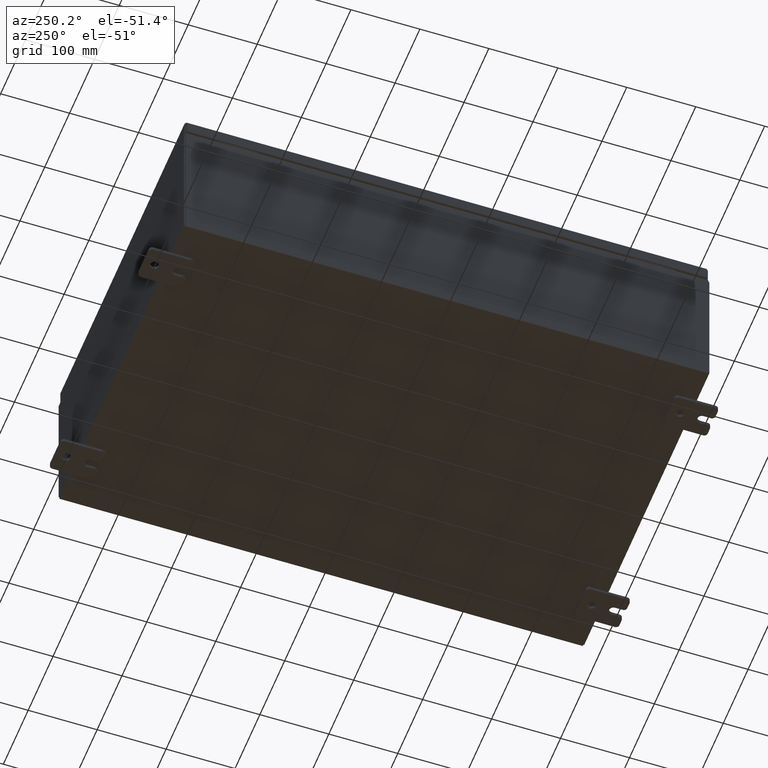
[diagram: clean part render]
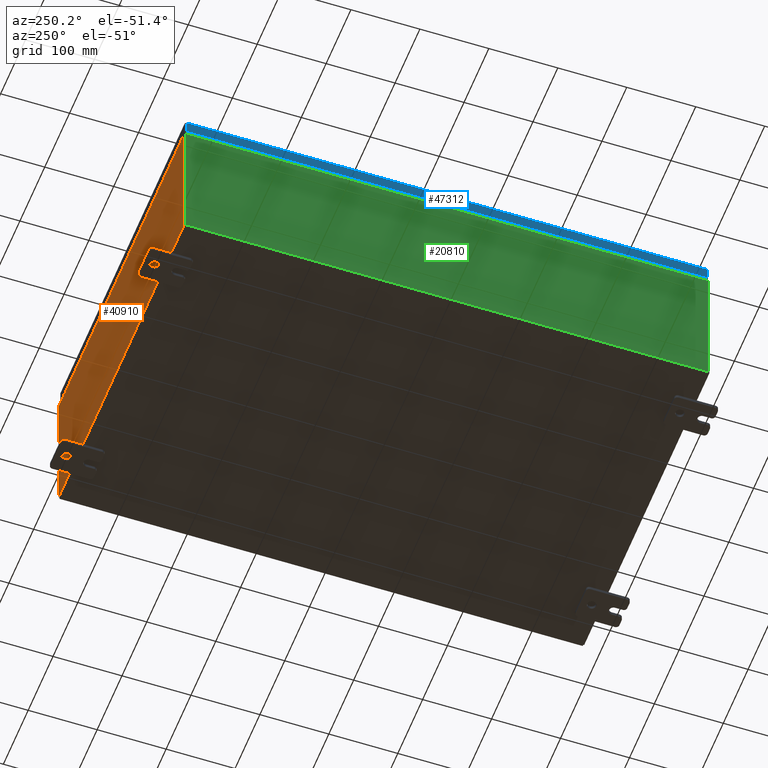
[diagram: same view with three faces highlighted in distinct colors, each labeled with its STEP entity id]
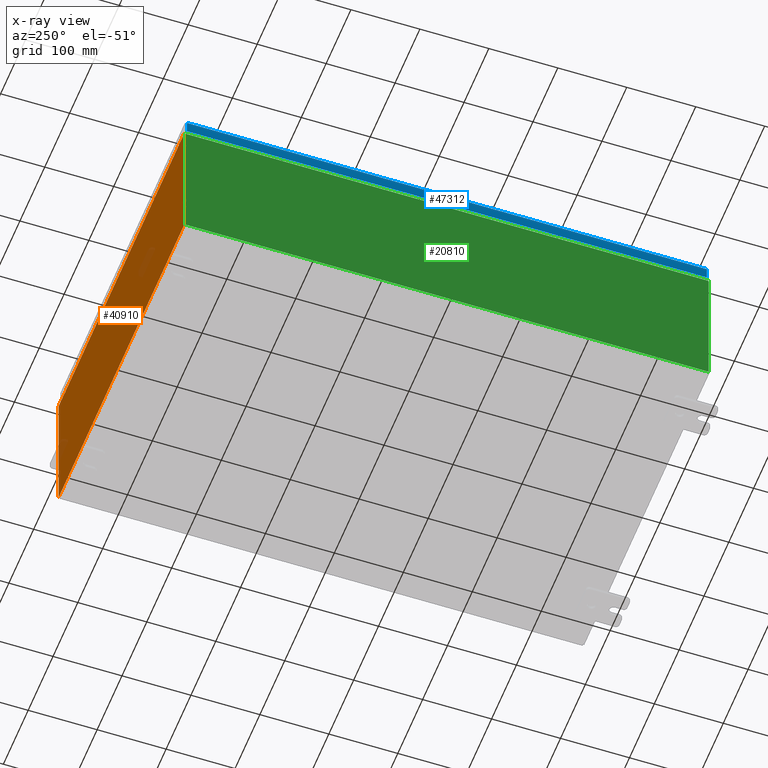
[diagram: x-ray of the same camera — body ghosted, the three highlighted faces saturated]
A machine part, auxiliary view with three faces highlighted in distinct colors.
The next image is the same camera in x-ray (body ghosted, the three faces saturated) — at least one of them is partly hidden behind the body in this view.
Their STEP definitions:

[orange] entity #40910 — the highlighted planar face has unit normal (0, -1, 0).
#235 = CARTESIAN_POINT ( 'NONE',  ( 9.925300000000000000, 0.0000000000000000000, 3.925299999999999600 ) ) ;
#747 = CARTESIAN_POINT ( 'NONE',  ( -9.925300000000000000, 0.0000000000000000000, 3.925299999999999600 ) ) ;
#1960 = EDGE_CURVE ( 'NONE', #49742, #6028, #45088, .T. ) ;
#2827 = CARTESIAN_POINT ( 'NONE',  ( -9.925300000000000000, 0.0000000000000000000, -3.925299999999999600 ) ) ;
#3098 = LINE ( 'NONE', #39384, #29477 ) ;
#3569 = DIRECTION ( 'NONE',  ( -0.0000000000000000000, -0.0000000000000000000, 1.000000000000000000 ) ) ;
#4559 = CARTESIAN_POINT ( 'NONE',  ( 8.924549999999831200, -0.0000000000000000000, -3.873765880731813500E-013 ) ) ;
#5437 = EDGE_LOOP ( 'NONE', ( #49940, #42186, #38575, #38917, #51863, #31928, #60370, #57666, #25655, #15766, #15403, #6688 ) ) ;
#6028 = VERTEX_POINT ( 'NONE', #54401 ) ;
#6688 = ORIENTED_EDGE ( 'NONE', *, *, #12874, .T. ) ;
#6837 = EDGE_CURVE ( 'NONE', #39371, #8341, #55728, .T. ) ;
#6971 = CARTESIAN_POINT ( 'NONE',  ( 8.924550000000000000, 0.0000000000000000000, 3.925299999999999600 ) ) ;
#6978 = VECTOR ( 'NONE', #42757, 39.37007874015748100 ) ;
#8341 = VERTEX_POINT ( 'NONE', #63499 ) ;
#9692 = DIRECTION ( 'NONE',  ( 1.000000000000000000, 0.0000000000000000000, 0.0000000000000000000 ) ) ;
#9802 = PLANE ( 'NONE',  #46676 ) ;
#10244 = VERTEX_POINT ( 'NONE', #15595 ) ;
#10486 = VERTEX_POINT ( 'NONE', #21555 ) ;
#12828 = CARTESIAN_POINT ( 'NONE',  ( 9.925300000000000000, 0.0000000000000000000, 3.925299999999999600 ) ) ;
#12874 = EDGE_CURVE ( 'NONE', #30945, #10486, #3098, .T. ) ;
#13197 = DIRECTION ( 'NONE',  ( 1.000000000000000000, 0.0000000000000000000, 0.0000000000000000000 ) ) ;
#13342 = EDGE_CURVE ( 'NONE', #8341, #10244, #46506, .T. ) ;
#14565 = CARTESIAN_POINT ( 'NONE',  ( 0.0000000000000000000, 0.0000000000000000000, 0.0000000000000000000 ) ) ;
#14780 = DIRECTION ( 'NONE',  ( 0.0000000000000000000, -0.0000000000000000000, -1.000000000000000000 ) ) ;
#14964 = DIRECTION ( 'NONE',  ( 0.0000000000000000000, 0.0000000000000000000, -1.000000000000000000 ) ) ;
#15015 = DIRECTION ( 'NONE',  ( 0.0000000000000000000, 0.0000000000000000000, -1.000000000000000000 ) ) ;
#15069 = CARTESIAN_POINT ( 'NONE',  ( 8.905875000000000000, 0.0000000000000000000, 3.874949999999999700 ) ) ;
#15191 = CARTESIAN_POINT ( 'NONE',  ( -8.924550000000000000, -0.0000000000000000000, 0.0000000000000000000 ) ) ;
#15403 = ORIENTED_EDGE ( 'NONE', *, *, #32593, .T. ) ;
#15595 = CARTESIAN_POINT ( 'NONE',  ( 8.887200000000000000, 0.0000000000000000000, 3.912299999999999700 ) ) ;
#15766 = ORIENTED_EDGE ( 'NONE', *, *, #40509, .T. ) ;
#16624 = LINE ( 'NONE', #23284, #54590 ) ;
#17720 = DIRECTION ( 'NONE',  ( -0.0000000000000000000, 1.000000000000000000, -0.0000000000000000000 ) ) ;
#19096 = LINE ( 'NONE', #235, #58654 ) ;
#19912 = EDGE_CURVE ( 'NONE', #49742, #10244, #40695, .T. ) ;
#20037 = DIRECTION ( 'NONE',  ( 0.0000000000000000000, 0.0000000000000000000, -1.000000000000000000 ) ) ;
#20455 = DIRECTION ( 'NONE',  ( 1.000000000000000000, 0.0000000000000000000, 0.0000000000000000000 ) ) ;
#21555 = CARTESIAN_POINT ( 'NONE',  ( -8.924550000000000000, 0.0000000000000000000, 3.925299999999999600 ) ) ;
#21756 = DIRECTION ( 'NONE',  ( -1.000000000000000000, -0.0000000000000000000, -0.0000000000000000000 ) ) ;
#22224 = LINE ( 'NONE', #4559, #60257 ) ;
#22311 = CARTESIAN_POINT ( 'NONE',  ( -8.887200000000000000, 1.024442997624098700E-016, 3.912299999999999700 ) ) ;
#23009 = LINE ( 'NONE', #747, #47798 ) ;
#23284 = CARTESIAN_POINT ( 'NONE',  ( -9.925300000000000000, 0.0000000000000000000, 3.925299999999999600 ) ) ;
#24014 = VERTEX_POINT ( 'NONE', #2827 ) ;
#24164 = LINE ( 'NONE', #51440, #50541 ) ;
#25159 = DIRECTION ( 'NONE',  ( 0.0000000000000000000, 0.0000000000000000000, 1.000000000000000000 ) ) ;
#25655 = ORIENTED_EDGE ( 'NONE', *, *, #58024, .T. ) ;
#27539 = CARTESIAN_POINT ( 'NONE',  ( -8.924549999999998200, 0.0000000000000000000, 3.874949999999999700 ) ) ;
#29477 = VECTOR ( 'NONE', #9692, 39.37007874015748100 ) ;
#30262 = VERTEX_POINT ( 'NONE', #6971 ) ;
#30750 = CARTESIAN_POINT ( 'NONE',  ( -9.925300000000000000, 0.0000000000000000000, 3.925299999999999600 ) ) ;
#30945 = VERTEX_POINT ( 'NONE', #30750 ) ;
#31190 = AXIS2_PLACEMENT_3D ( 'NONE', #47414, #17720, #52388 ) ;
#31296 = VERTEX_POINT ( 'NONE', #12828 ) ;
#31928 = ORIENTED_EDGE ( 'NONE', *, *, #6837, .F. ) ;
#32593 = EDGE_CURVE ( 'NONE', #24014, #30945, #16624, .T. ) ;
#35779 = CARTESIAN_POINT ( 'NONE',  ( 8.924550000000000000, 0.0000000000000000000, 3.874949999999999700 ) ) ;
#38575 = ORIENTED_EDGE ( 'NONE', *, *, #1960, .F. ) ;
#38917 = ORIENTED_EDGE ( 'NONE', *, *, #19912, .T. ) ;
#39371 = VERTEX_POINT ( 'NONE', #35779 ) ;
#39384 = CARTESIAN_POINT ( 'NONE',  ( -9.925300000000000000, 0.0000000000000000000, 3.925299999999999600 ) ) ;
#40509 = EDGE_CURVE ( 'NONE', #41479, #24014, #24164, .T. ) ;
#40695 = LINE ( 'NONE', #52826, #52266 ) ;
#40910 = ADVANCED_FACE ( 'NONE', ( #41221 ), #9802, .F. ) ;
#41221 = FACE_OUTER_BOUND ( 'NONE', #5437, .T. ) ;
#41479 = VERTEX_POINT ( 'NONE', #57815 ) ;
#42186 = ORIENTED_EDGE ( 'NONE', *, *, #62907, .F. ) ;
#42757 = DIRECTION ( 'NONE',  ( 0.0000000000000000000, 0.0000000000000000000, 1.000000000000000000 ) ) ;
#42928 = CIRCLE ( 'NONE', #31190, 0.01867500000000003900 ) ;
#44464 = DIRECTION ( 'NONE',  ( 0.0000000000000000000, -1.000000000000000000, 0.0000000000000000000 ) ) ;
#44615 = LINE ( 'NONE', #15191, #56243 ) ;
#44866 = AXIS2_PLACEMENT_3D ( 'NONE', #15069, #49718, #20037 ) ;
#45088 = LINE ( 'NONE', #49663, #56696 ) ;
#46506 = LINE ( 'NONE', #52707, #6978 ) ;
#46676 = AXIS2_PLACEMENT_3D ( 'NONE', #14565, #44464, #14780 ) ;
#47414 = CARTESIAN_POINT ( 'NONE',  ( -8.905874999999998200, 0.0000000000000000000, 3.874949999999999700 ) ) ;
#47798 = VECTOR ( 'NONE', #20455, 39.37007874015748100 ) ;
#49663 = CARTESIAN_POINT ( 'NONE',  ( -8.887200000000000000, -0.0000000000000000000, 0.0000000000000000000 ) ) ;
#49718 = DIRECTION ( 'NONE',  ( -0.0000000000000000000, 1.000000000000000000, -0.0000000000000000000 ) ) ;
#49742 = VERTEX_POINT ( 'NONE', #22311 ) ;
#49940 = ORIENTED_EDGE ( 'NONE', *, *, #59489, .F. ) ;
#50541 = VECTOR ( 'NONE', #21756, 39.37007874015748100 ) ;
#51440 = CARTESIAN_POINT ( 'NONE',  ( -9.925300000000000000, 0.0000000000000000000, -3.925299999999999600 ) ) ;
#51863 = ORIENTED_EDGE ( 'NONE', *, *, #13342, .F. ) ;
#52266 = VECTOR ( 'NONE', #13197, 39.37007874015748100 ) ;
#52388 = DIRECTION ( 'NONE',  ( 0.0000000000000000000, 0.0000000000000000000, -1.000000000000000000 ) ) ;
#52707 = CARTESIAN_POINT ( 'NONE',  ( 8.887200000000000000, 0.0000000000000000000, 0.0000000000000000000 ) ) ;
#52826 = CARTESIAN_POINT ( 'NONE',  ( -8.887200000000000000, 1.024442997624098700E-016, 3.912299999999999700 ) ) ;
#54401 = CARTESIAN_POINT ( 'NONE',  ( -8.887200000000000000, -0.0000000000000000000, 3.874949999999999700 ) ) ;
#54590 = VECTOR ( 'NONE', #3569, 39.37007874015748100 ) ;
#55728 = CIRCLE ( 'NONE', #44866, 0.01867500000000003900 ) ;
#56243 = VECTOR ( 'NONE', #25159, 39.37007874015748100 ) ;
#56696 = VECTOR ( 'NONE', #15015, 39.37007874015748100 ) ;
#57470 = EDGE_CURVE ( 'NONE', #30262, #31296, #23009, .T. ) ;
#57666 = ORIENTED_EDGE ( 'NONE', *, *, #57470, .T. ) ;
#57743 = VERTEX_POINT ( 'NONE', #27539 ) ;
#57815 = CARTESIAN_POINT ( 'NONE',  ( 9.925300000000000000, 0.0000000000000000000, -3.925299999999999600 ) ) ;
#57932 = EDGE_CURVE ( 'NONE', #30262, #39371, #22224, .T. ) ;
#58024 = EDGE_CURVE ( 'NONE', #31296, #41479, #19096, .T. ) ;
#58654 = VECTOR ( 'NONE', #14964, 39.37007874015748100 ) ;
#58938 = DIRECTION ( 'NONE',  ( -4.340572780400004900E-014, 0.0000000000000000000, -1.000000000000000000 ) ) ;
#59489 = EDGE_CURVE ( 'NONE', #57743, #10486, #44615, .T. ) ;
#60257 = VECTOR ( 'NONE', #58938, 39.37007874015748100 ) ;
#60370 = ORIENTED_EDGE ( 'NONE', *, *, #57932, .F. ) ;
#62907 = EDGE_CURVE ( 'NONE', #6028, #57743, #42928, .T. ) ;
#63499 = CARTESIAN_POINT ( 'NONE',  ( 8.887200000000000000, 0.0000000000000000000, 3.874949999999999700 ) ) ;

[blue] entity #47312 — the highlighted planar face has unit normal (1, 0, -0).
#899 = LINE ( 'NONE', #25845, #53562 ) ;
#1596 = CARTESIAN_POINT ( 'NONE',  ( -9.937500000000001800, 14.84865786437627800, -0.7949999999999960400 ) ) ;
#1811 = DIRECTION ( 'NONE',  ( 7.315408853326958100E-017, -1.000000000000000000, 7.315408853326900200E-017 ) ) ;
#2129 = EDGE_CURVE ( 'NONE', #53773, #25353, #899, .T. ) ;
#2217 = EDGE_CURVE ( 'NONE', #57608, #44845, #63680, .T. ) ;
#5658 = EDGE_CURVE ( 'NONE', #25353, #44845, #40331, .T. ) ;
#13603 = CARTESIAN_POINT ( 'NONE',  ( -9.937500000000001800, -14.84865786437626100, -0.7949999999999996000 ) ) ;
#14541 = FACE_OUTER_BOUND ( 'NONE', #19061, .T. ) ;
#15041 = PLANE ( 'NONE',  #30739 ) ;
#15248 = VECTOR ( 'NONE', #1811, 39.37007874015748100 ) ;
#19061 = EDGE_LOOP ( 'NONE', ( #49182, #24564, #24898, #31223 ) ) ;
#20016 = DIRECTION ( 'NONE',  ( 1.000000000000000000, 7.315408853326936000E-017, -3.034122441942816500E-015 ) ) ;
#21721 = CARTESIAN_POINT ( 'NONE',  ( -9.937500000000001800, 14.84865786437627100, -0.08770000000000223500 ) ) ;
#24013 = VECTOR ( 'NONE', #52676, 39.37007874015748100 ) ;
#24564 = ORIENTED_EDGE ( 'NONE', *, *, #2217, .T. ) ;
#24898 = ORIENTED_EDGE ( 'NONE', *, *, #5658, .F. ) ;
#25353 = VERTEX_POINT ( 'NONE', #13603 ) ;
#25845 = CARTESIAN_POINT ( 'NONE',  ( -9.937500000000000000, -14.84865786437626400, -0.07469999999999976700 ) ) ;
#28387 = LINE ( 'NONE', #41460, #15248 ) ;
#29683 = EDGE_CURVE ( 'NONE', #57608, #53773, #28387, .T. ) ;
#30739 = AXIS2_PLACEMENT_3D ( 'NONE', #49693, #20016, #54676 ) ;
#31223 = ORIENTED_EDGE ( 'NONE', *, *, #2129, .F. ) ;
#32768 = CARTESIAN_POINT ( 'NONE',  ( -9.937500000000001800, -14.93749999999999500, -0.7949999999999997100 ) ) ;
#36248 = DIRECTION ( 'NONE',  ( -3.034122441942816500E-015, 6.982962677686265900E-015, -1.000000000000000000 ) ) ;
#38876 = VECTOR ( 'NONE', #36248, 39.37007874015748100 ) ;
#39691 = CARTESIAN_POINT ( 'NONE',  ( -9.937500000000000000, -14.84865786437626200, -0.08770000000000115200 ) ) ;
#40331 = LINE ( 'NONE', #32768, #24013 ) ;
#41460 = CARTESIAN_POINT ( 'NONE',  ( -9.937500000000000000, -14.93749999999999500, -0.08770000000000004200 ) ) ;
#44845 = VERTEX_POINT ( 'NONE', #1596 ) ;
#47312 = ADVANCED_FACE ( 'NONE', ( #14541 ), #15041, .F. ) ;
#49182 = ORIENTED_EDGE ( 'NONE', *, *, #29683, .F. ) ;
#49693 = CARTESIAN_POINT ( 'NONE',  ( -9.937500000000000000, -7.269687547993641600E-016, 3.041240542281832100E-014 ) ) ;
#50325 = DIRECTION ( 'NONE',  ( -3.034122441942816500E-015, 6.982962677686265900E-015, -1.000000000000000000 ) ) ;
#52676 = DIRECTION ( 'NONE',  ( -7.315408853326899000E-017, 1.000000000000000000, 1.234475243998914400E-016 ) ) ;
#53562 = VECTOR ( 'NONE', #50325, 39.37007874015748100 ) ;
#53773 = VERTEX_POINT ( 'NONE', #39691 ) ;
#54676 = DIRECTION ( 'NONE',  ( -3.034122441942816500E-015, 0.0000000000000000000, -1.000000000000000000 ) ) ;
#57608 = VERTEX_POINT ( 'NONE', #21721 ) ;
#60965 = CARTESIAN_POINT ( 'NONE',  ( -9.937500000000000000, 14.84865786437627100, 1.341000291034904900E-013 ) ) ;
#63680 = LINE ( 'NONE', #60965, #38876 ) ;

[green] entity #20810 — the highlighted planar face has unit normal (1, 0, 0).
#1539 = DIRECTION ( 'NONE',  ( 3.584876173029202900E-015, 0.0000000000000000000, -1.000000000000000000 ) ) ;
#1890 = VECTOR ( 'NONE', #38475, 39.37007874015748100 ) ;
#3192 = LINE ( 'NONE', #16264, #14828 ) ;
#4339 = VECTOR ( 'NONE', #28423, 39.37007874015748100 ) ;
#8046 = VERTEX_POINT ( 'NONE', #31694 ) ;
#8312 = EDGE_LOOP ( 'NONE', ( #10905, #34596, #8465, #19121 ) ) ;
#8465 = ORIENTED_EDGE ( 'NONE', *, *, #32619, .F. ) ;
#10905 = ORIENTED_EDGE ( 'NONE', *, *, #49140, .T. ) ;
#11501 = VECTOR ( 'NONE', #59065, 39.37007874015748100 ) ;
#14828 = VECTOR ( 'NONE', #1539, 39.37007874015748100 ) ;
#16264 = CARTESIAN_POINT ( 'NONE',  ( -10.00000000000000000, 14.92530000000000500, -3.610957538630361200E-014 ) ) ;
#19023 = CARTESIAN_POINT ( 'NONE',  ( -10.00000000000000000, 0.0000000000000000000, -3.610957538630361200E-014 ) ) ;
#19121 = ORIENTED_EDGE ( 'NONE', *, *, #56324, .T. ) ;
#20446 = CARTESIAN_POINT ( 'NONE',  ( -10.00000000000002800, -14.92529999999999600, 7.837599999999999200 ) ) ;
#20810 = ADVANCED_FACE ( 'NONE', ( #25887 ), #53689, .F. ) ;
#21489 = CARTESIAN_POINT ( 'NONE',  ( -10.00000000000002800, -14.92529999999999600, 7.837599999999999200 ) ) ;
#24406 = CARTESIAN_POINT ( 'NONE',  ( -10.00000000000000000, -14.92529999999999600, -3.610957538630361200E-014 ) ) ;
#25887 = FACE_OUTER_BOUND ( 'NONE', #8312, .T. ) ;
#27424 = VERTEX_POINT ( 'NONE', #32852 ) ;
#28423 = DIRECTION ( 'NONE',  ( 0.0000000000000000000, 1.000000000000000000, 0.0000000000000000000 ) ) ;
#28472 = CARTESIAN_POINT ( 'NONE',  ( -10.00000000000000000, 14.92530000000000500, 0.01299999999999984700 ) ) ;
#29006 = DIRECTION ( 'NONE',  ( 3.584876173029202900E-015, 0.0000000000000000000, -1.000000000000000000 ) ) ;
#30738 = LINE ( 'NONE', #21489, #4339 ) ;
#31694 = CARTESIAN_POINT ( 'NONE',  ( -10.00000000000000000, -14.92529999999999600, 0.01299999999999984700 ) ) ;
#32619 = EDGE_CURVE ( 'NONE', #8046, #27424, #41426, .T. ) ;
#32852 = CARTESIAN_POINT ( 'NONE',  ( -10.00000000000000000, 14.92530000000000500, 0.01299999999999983600 ) ) ;
#34596 = ORIENTED_EDGE ( 'NONE', *, *, #52350, .T. ) ;
#38302 = VERTEX_POINT ( 'NONE', #20446 ) ;
#38475 = DIRECTION ( 'NONE',  ( -0.0000000000000000000, 1.000000000000000000, -0.0000000000000000000 ) ) ;
#39960 = AXIS2_PLACEMENT_3D ( 'NONE', #19023, #58680, #29006 ) ;
#41426 = LINE ( 'NONE', #28472, #1890 ) ;
#49140 = EDGE_CURVE ( 'NONE', #38302, #63255, #30738, .T. ) ;
#51038 = LINE ( 'NONE', #24406, #11501 ) ;
#52350 = EDGE_CURVE ( 'NONE', #63255, #27424, #3192, .T. ) ;
#53689 = PLANE ( 'NONE',  #39960 ) ;
#54466 = CARTESIAN_POINT ( 'NONE',  ( -10.00000000000002800, 14.92530000000000500, 7.837599999999999200 ) ) ;
#56324 = EDGE_CURVE ( 'NONE', #8046, #38302, #51038, .T. ) ;
#58680 = DIRECTION ( 'NONE',  ( 1.000000000000000000, 0.0000000000000000000, 3.584876173029202900E-015 ) ) ;
#59065 = DIRECTION ( 'NONE',  ( -3.584876173029202900E-015, 0.0000000000000000000, 1.000000000000000000 ) ) ;
#63255 = VERTEX_POINT ( 'NONE', #54466 ) ;